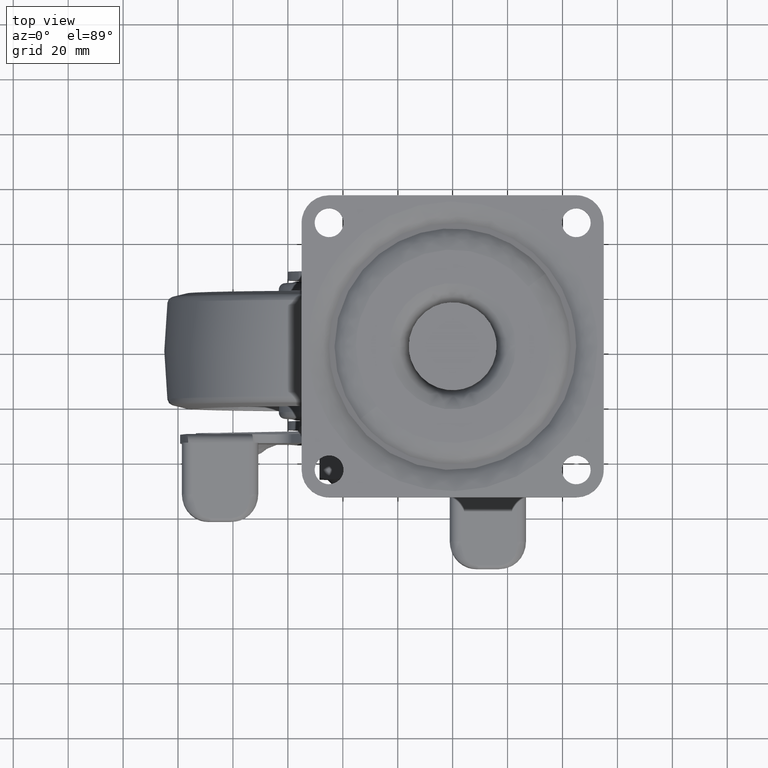
[diagram: clean part render]
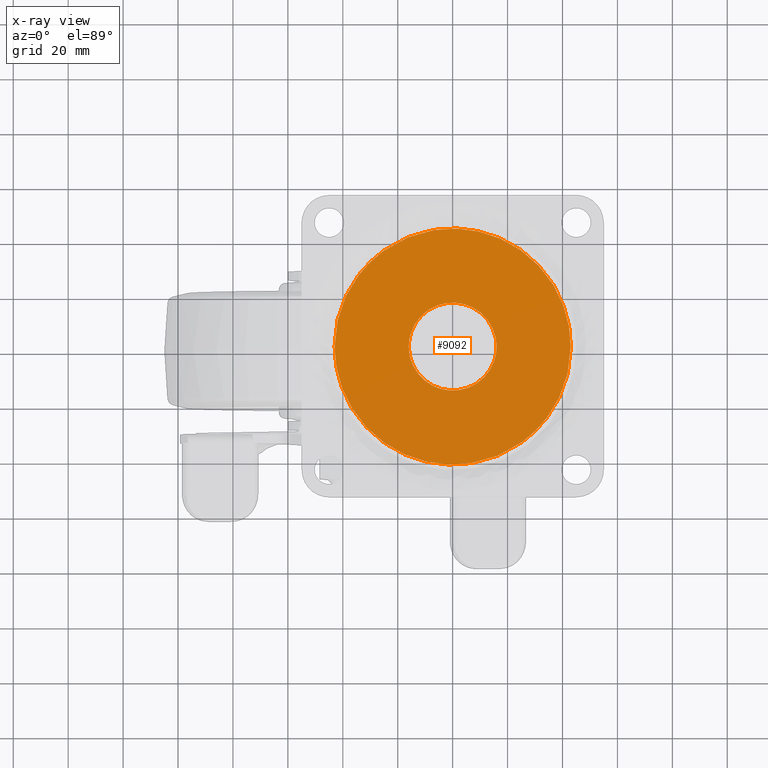
[diagram: x-ray — body ghosted, one internal face saturated and labeled with its STEP entity id]
A machine part, top view, then the same camera in x-ray: the body is ghosted and one INTERNAL B-rep face — a face not visible from any outside direction — is saturated and labeled: STEP entity #9092.
In plain terms, the highlighted face is a freeform B-spline surface patch.
Its self-contained STEP definition (entity closure, byte-faithful):
#8843=CARTESIAN_POINT('',(-25.274765537428060,34.787730329532657,-7.699999999999999));
#8844=VERTEX_POINT('',#8843);
#8858=CARTESIAN_POINT('',(-42.999999465296249,1.421085E-014,-7.700000000000000));
#8859=VERTEX_POINT('',#8858);
#8860=CARTESIAN_POINT('',(-42.999999465296249,1.421085E-014,-7.700000000000000));
#8861=CARTESIAN_POINT('',(-42.999999466788843,21.909594057747050,-7.699999999999999));
#8862=CARTESIAN_POINT('',(-25.274765537428049,34.787730329532671,-7.699999999999999));
#8870=(BOUNDED_CURVE()B_SPLINE_CURVE(2,(#8860,#8861,#8862),.UNSPECIFIED.,.F.,.U.)B_SPLINE_CURVE_WITH_KNOTS((3,3),(0.0,0.148750340999051),.UNSPECIFIED.)CURVE()GEOMETRIC_REPRESENTATION_ITEM()RATIONAL_B_SPLINE_CURVE((1.0,0.825728135300758,0.858840265005937))REPRESENTATION_ITEM(''));
#8871=EDGE_CURVE('',#8859,#8844,#8870,.T.);
#8873=CARTESIAN_POINT('',(25.274765537428060,-34.787730329532643,-7.699999999999999));
#8874=VERTEX_POINT('',#8873);
#8875=CARTESIAN_POINT('',(25.274765537428063,-34.787730329532629,-7.699999999999999));
#8876=CARTESIAN_POINT('',(13.971546767124899,-42.999999469064896,-7.700000000000000));
#8877=CARTESIAN_POINT('',(2.253104E-009,-42.999999468397377,-7.700000000000000));
#8878=CARTESIAN_POINT('',(-42.999999464535733,-42.999999466342999,-7.700000000000000));
#8879=CARTESIAN_POINT('',(-42.999999465296249,1.421085E-014,-7.700000000000000));
#8887=(BOUNDED_CURVE()B_SPLINE_CURVE(2,(#8875,#8876,#8877,#8878,#8879),.UNSPECIFIED.,.F.,.U.)B_SPLINE_CURVE_WITH_KNOTS((3,2,3),(0.648750340999051,0.750000000000000,1.0),.UNSPECIFIED.)CURVE()GEOMETRIC_REPRESENTATION_ITEM()RATIONAL_B_SPLINE_CURVE((0.858840265005937,0.881378645885790,1.0,0.707106781186548,1.0))REPRESENTATION_ITEM(''));
#8888=EDGE_CURVE('',#8874,#8859,#8887,.T.);
#8951=CARTESIAN_POINT('',(42.999999465296249,1.421085E-014,-7.700000000000000));
#8952=VERTEX_POINT('',#8951);
#8953=CARTESIAN_POINT('',(42.999999465296249,1.421085E-014,-7.700000000000000));
#8954=CARTESIAN_POINT('',(42.999999466788843,-21.909594057747015,-7.700000000000001));
#8955=CARTESIAN_POINT('',(25.274765537428063,-34.787730329532629,-7.699999999999999));
#8963=(BOUNDED_CURVE()B_SPLINE_CURVE(2,(#8953,#8954,#8955),.UNSPECIFIED.,.F.,.U.)B_SPLINE_CURVE_WITH_KNOTS((3,3),(0.500000000000000,0.648750340999051),.UNSPECIFIED.)CURVE()GEOMETRIC_REPRESENTATION_ITEM()RATIONAL_B_SPLINE_CURVE((1.0,0.825728135300758,0.858840265005937))REPRESENTATION_ITEM(''));
#8964=EDGE_CURVE('',#8952,#8874,#8963,.T.);
#8966=CARTESIAN_POINT('',(-25.274765537428049,34.787730329532671,-7.699999999999999));
#8967=CARTESIAN_POINT('',(-13.971546767124897,42.999999469064896,-7.700000000000000));
#8968=CARTESIAN_POINT('',(-2.253112E-009,42.999999468397398,-7.700000000000000));
#8969=CARTESIAN_POINT('',(42.999999464535733,42.999999466343027,-7.700000000000000));
#8970=CARTESIAN_POINT('',(42.999999465296249,1.421085E-014,-7.700000000000000));
#8978=(BOUNDED_CURVE()B_SPLINE_CURVE(2,(#8966,#8967,#8968,#8969,#8970),.UNSPECIFIED.,.F.,.U.)B_SPLINE_CURVE_WITH_KNOTS((3,2,3),(0.148750340999051,0.250000000000000,0.500000000000000),.UNSPECIFIED.)CURVE()GEOMETRIC_REPRESENTATION_ITEM()RATIONAL_B_SPLINE_CURVE((0.858840265005937,0.881378645885790,1.0,0.707106781186548,1.0))REPRESENTATION_ITEM(''));
#8979=EDGE_CURVE('',#8844,#8952,#8978,.T.);
#9015=CARTESIAN_POINT('',(-47.295699245194662,-47.272365954417317,-7.700000000000000));
#9016=CARTESIAN_POINT('',(47.295701551894382,-47.272365954417317,-7.700000000000000));
#9017=CARTESIAN_POINT('',(-47.295699245194662,47.272363648855539,-7.700000000000000));
#9018=CARTESIAN_POINT('',(47.295701551894382,47.272363648855531,-7.700000000000000));
#9019=B_SPLINE_SURFACE_WITH_KNOTS('',1,1,((#9015,#9017),(#9016,#9018)),.UNSPECIFIED.,.F.,.F.,.U.,(2,2),(2,2),(0.0,94.591400797089051),(0.0,94.544729603272856),.UNSPECIFIED.);
#9020=ORIENTED_EDGE('',*,*,#8871,.T.);
#9021=ORIENTED_EDGE('',*,*,#8979,.T.);
#9022=ORIENTED_EDGE('',*,*,#8964,.T.);
#9023=ORIENTED_EDGE('',*,*,#8888,.T.);
#9024=EDGE_LOOP('',(#9020,#9021,#9022,#9023));
#9025=FACE_OUTER_BOUND('',#9024,.T.);
#9026=CARTESIAN_POINT('',(-16.0,0.0,-7.700000000000000));
#9027=VERTEX_POINT('',#9026);
#9028=CARTESIAN_POINT('',(-0.976765918743178,-15.970157430027619,-7.700000000000000));
#9029=VERTEX_POINT('',#9028);
#9030=CARTESIAN_POINT('',(-16.0,0.0,-7.700000000000000));
#9031=CARTESIAN_POINT('',(-15.999999999999897,-15.051307186744941,-7.700000000000004));
#9032=CARTESIAN_POINT('',(-0.976765918743178,-15.970157430027621,-7.700000000000000));
#9040=(BOUNDED_CURVE()B_SPLINE_CURVE(2,(#9030,#9031,#9032),.UNSPECIFIED.,.F.,.U.)B_SPLINE_CURVE_WITH_KNOTS((3,3),(0.500000000000000,0.739333077997530),.UNSPECIFIED.)CURVE()GEOMETRIC_REPRESENTATION_ITEM()RATIONAL_B_SPLINE_CURVE((1.0,0.719603857667090,0.976072289759531))REPRESENTATION_ITEM(''));
#9041=EDGE_CURVE('',#9027,#9029,#9040,.T.);
#9042=ORIENTED_EDGE('',*,*,#9041,.T.);
#9043=CARTESIAN_POINT('',(16.0,0.0,-7.700000000000000));
#9044=VERTEX_POINT('',#9043);
#9045=CARTESIAN_POINT('',(-0.976765918743178,-15.970157430027621,-7.700000000000000));
#9046=CARTESIAN_POINT('',(-0.488838840849968,-15.999999999996460,-7.700000000000001));
#9047=CARTESIAN_POINT('',(2.122298E-013,-15.999999999996509,-7.700000000000002));
#9048=CARTESIAN_POINT('',(16.000000000000099,-15.999999999998314,-7.700000000000002));
#9049=CARTESIAN_POINT('',(16.0,0.0,-7.700000000000000));
#9057=(BOUNDED_CURVE()B_SPLINE_CURVE(2,(#9045,#9046,#9047,#9048,#9049),.UNSPECIFIED.,.F.,.U.)B_SPLINE_CURVE_WITH_KNOTS((3,2,3),(0.739333077997530,0.750000000000000,1.0),.UNSPECIFIED.)CURVE()GEOMETRIC_REPRESENTATION_ITEM()RATIONAL_B_SPLINE_CURVE((0.976072289759531,0.987502923519458,1.0,0.707106781186548,1.0))REPRESENTATION_ITEM(''));
#9058=EDGE_CURVE('',#9029,#9044,#9057,.T.);
#9059=ORIENTED_EDGE('',*,*,#9058,.T.);
#9060=CARTESIAN_POINT('',(0.976765918743177,15.970157430027619,-7.700000000000001));
#9061=VERTEX_POINT('',#9060);
#9062=CARTESIAN_POINT('',(16.0,0.0,-7.700000000000000));
#9063=CARTESIAN_POINT('',(15.999999999999897,15.051307186744941,-7.700000000000004));
#9064=CARTESIAN_POINT('',(0.976765918743177,15.970157430027621,-7.700000000000003));
#9072=(BOUNDED_CURVE()B_SPLINE_CURVE(2,(#9062,#9063,#9064),.UNSPECIFIED.,.F.,.U.)B_SPLINE_CURVE_WITH_KNOTS((3,3),(0.0,0.239333077997530),.UNSPECIFIED.)CURVE()GEOMETRIC_REPRESENTATION_ITEM()RATIONAL_B_SPLINE_CURVE((1.0,0.719603857667090,0.976072289759531))REPRESENTATION_ITEM(''));
#9073=EDGE_CURVE('',#9044,#9061,#9072,.T.);
#9074=ORIENTED_EDGE('',*,*,#9073,.T.);
#9075=CARTESIAN_POINT('',(0.976765918743177,15.970157430027621,-7.700000000000003));
#9076=CARTESIAN_POINT('',(0.488838840849967,15.999999999996460,-7.700000000000003));
#9077=CARTESIAN_POINT('',(-2.130916E-013,15.999999999996509,-7.700000000000003));
#9078=CARTESIAN_POINT('',(-16.000000000000099,15.999999999998314,-7.700000000000002));
#9079=CARTESIAN_POINT('',(-16.0,0.0,-7.700000000000000));
#9087=(BOUNDED_CURVE()B_SPLINE_CURVE(2,(#9075,#9076,#9077,#9078,#9079),.UNSPECIFIED.,.F.,.U.)B_SPLINE_CURVE_WITH_KNOTS((3,2,3),(0.239333077997530,0.250000000000000,0.500000000000000),.UNSPECIFIED.)CURVE()GEOMETRIC_REPRESENTATION_ITEM()RATIONAL_B_SPLINE_CURVE((0.976072289759531,0.987502923519458,1.0,0.707106781186548,1.0))REPRESENTATION_ITEM(''));
#9088=EDGE_CURVE('',#9061,#9027,#9087,.T.);
#9089=ORIENTED_EDGE('',*,*,#9088,.T.);
#9090=EDGE_LOOP('',(#9042,#9059,#9074,#9089));
#9091=FACE_BOUND('',#9090,.T.);
#9092=ADVANCED_FACE('',(#9025,#9091),#9019,.F.);